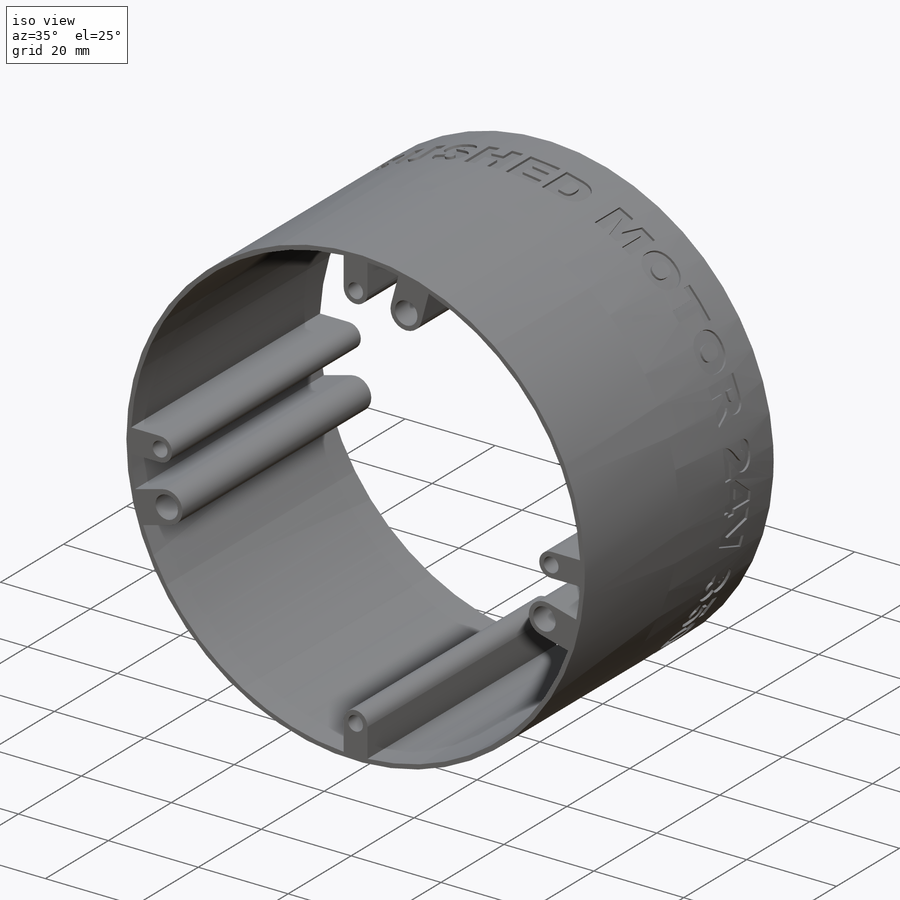
[diagram: iso view]
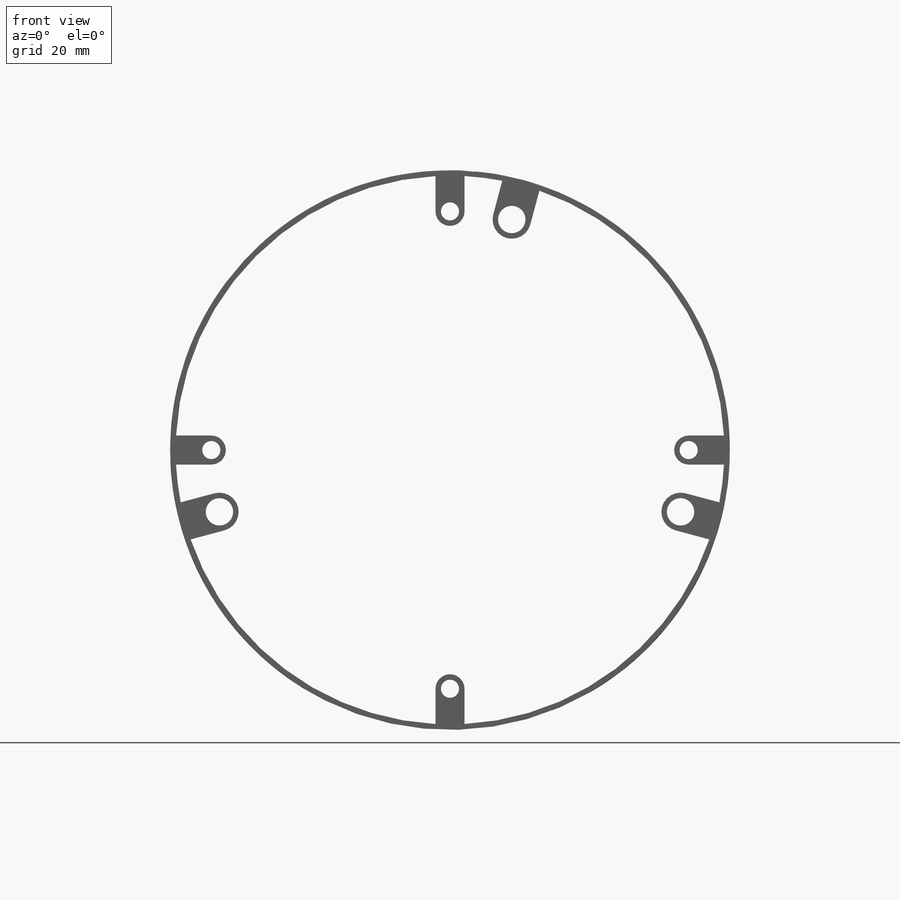
[diagram: front view]
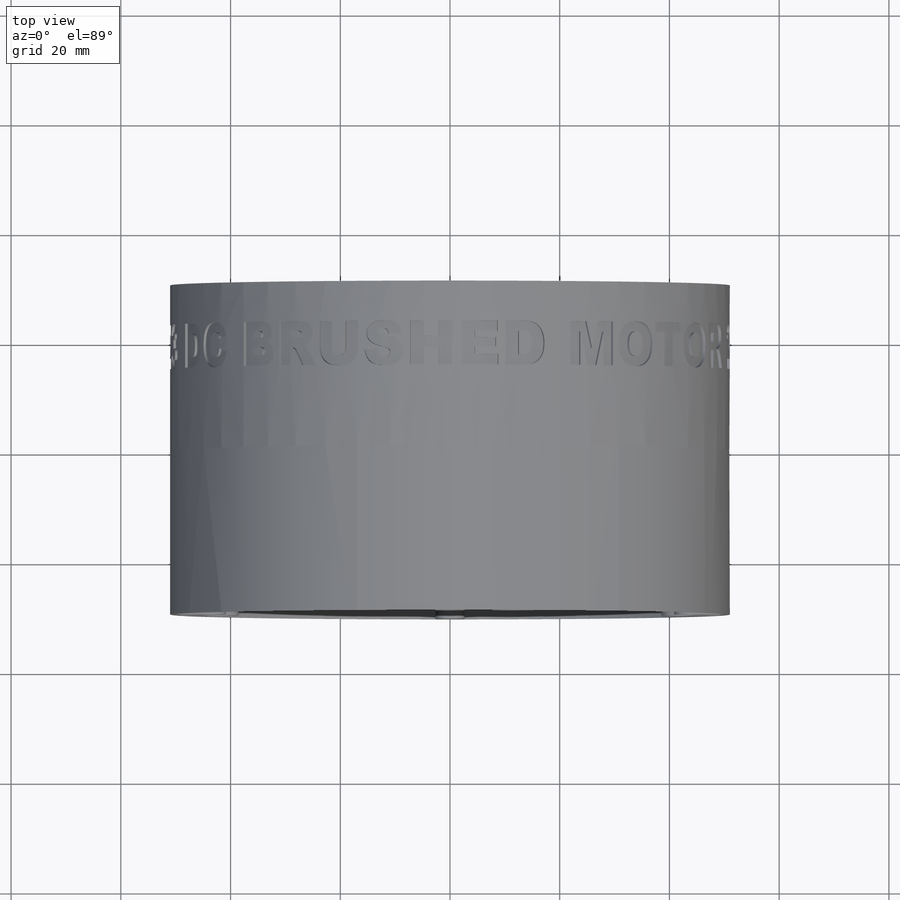
[diagram: top view]
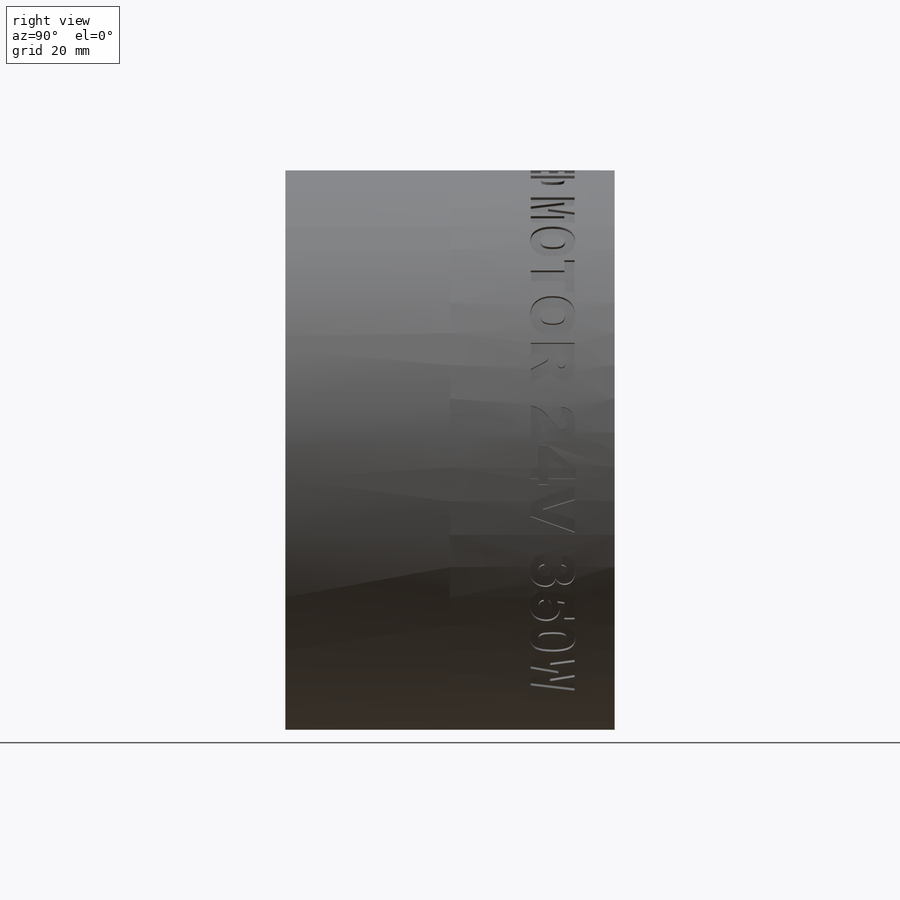
[diagram: right view]
SOLIDWORKS PART (.sldprt)
format: sldprt  version: not decoded by parser v0  size: 2,002,432 bytes
history: native  units: mm
features: sketch x10, hole x2, material x1, extrude x1, cut_extrude x1 (+11 scaffold rows collapsed)
feature tree (26):
  scaffold x11  (default folders/planes/origin — collapsed)
  material  "Material <not specified>"
  sketch  "Sketch1"  dims[c1.D1=102.0mm c1.D2=111.0mm c1.D3=20.0mm c1.D5=82.0mm c1.D6=25.0mm c1.D7=41.0mm c1.D8=35.0mm c1.D9=70.0mm c1.D10=87.0mm c1.D12=9.0mm c1.D13=4.5mm c1.D17=6.0mm c1.D18=12.0mm c1.D19=4.5mm c1.D21=5.5mm c1.D22=9.5mm c1.D24=5.5mm c1.D25=9.5mm c1.D29=41.0mm c1.D30=4.3mm c2.D6=24.5mm c2.D33=14.0mm c2.D34=12.5mm c2.D35=8.0mm c2.D36=6.0mm c2.D37=6.0mm c2.D38=17.5mm c2.D39=10.0mm c2.D40=6.0mm c2.D49=53.5mm c2.D52=53.0mm c2.D53=102.0mm c2.D54=53.0mm c2.D32=51.5mm c2.D48=53.5mm c2.D4=39.0mm c2.D15=90.0deg c2.D16=55.5mm c3.D16=15.0deg c3.D21=120.0deg c4.D16=~49.078927mm c5.D16=40.0deg c5.D20=55.5mm c6.D20=15.0deg c6.D23=~35.336698mm c7.D23=45.0deg c7.D26=41.5mm c7.D27=1.5mm c7.D29=~24.128008mm c8.D29=20.0deg c8.D31=18.8mm c8.D41=~39.451215mm c9.D41=30.0deg c9.D42=1.5mm c9.D43=1.5mm c9.D45=30.0deg c9.D46=~39.244426mm c10.D46=45.0deg c10.D47=55.0mm c10.D48=~62.115119mm c11.D48=25.5deg c11.D50=2.0mm c11.D51=~8.084668mm c12.D51=25.0deg c12.D52=2.0mm c12.D53=2.0mm c12.D54=2.0mm c12.D32=2.5mm c12.D48=2.5mm c12.D50=5.0mm c13.D51=5.0mm c13.D52=2.5mm c13.D53=6.0mm c13.D54=22.0mm c13.D55=2.5mm c13.D56=110.0mm c13.D11=5.0mm c14.D52=2.5mm c14.D14=3.0 c14.D28=8.0 c14.D44=5.0]
  sketch  "Sketch2"
  extrude  "Boss-Extrude1"  Depth=60mm
  sketch  "Sketch3"
  hole  "M4x0.7 Tapped Hole1"  Diameter=3.3mm Depth=60mm
  sketch  "3DSketch1"
  sketch  "Sketch4"  dims[hole-wizard template sketch: 59 standard entries collapsed; hole parameters kept: c18.Thread Major Dia.=3.3mm c18.Thru Tap Drill Depth=60.0mm]
  sketch  "Sketch5"
  hole  "M6x1.0 Tapped Hole1"  Diameter=5mm Depth=60mm
  sketch  "Sketch7"
  sketch  "Sketch6"  dims[hole-wizard template sketch: 59 standard entries collapsed; hole parameters kept: c18.Thread Major Dia.=5.0mm c18.Thru Tap Drill Depth=60.0mm]
  sketch  "Sketch8"  dims[c1.D1=50.0mm c1.D5=120.0deg c2.D1=1.0mm c2.D2=43.5mm c3.D1=1.0mm c3.D2=1.0mm]
  cut_extrude  "Cut-Extrude1"  Depth=60mm
  sketch  "Sketch9"  dims[D1=0.5mm]
decode coverage: 9 of 14 modeling features carry decoded parameters
note: ~ marks probable driven/reference dimensions
note: suppression state not decoded; provenance and decode notes live in map.json
